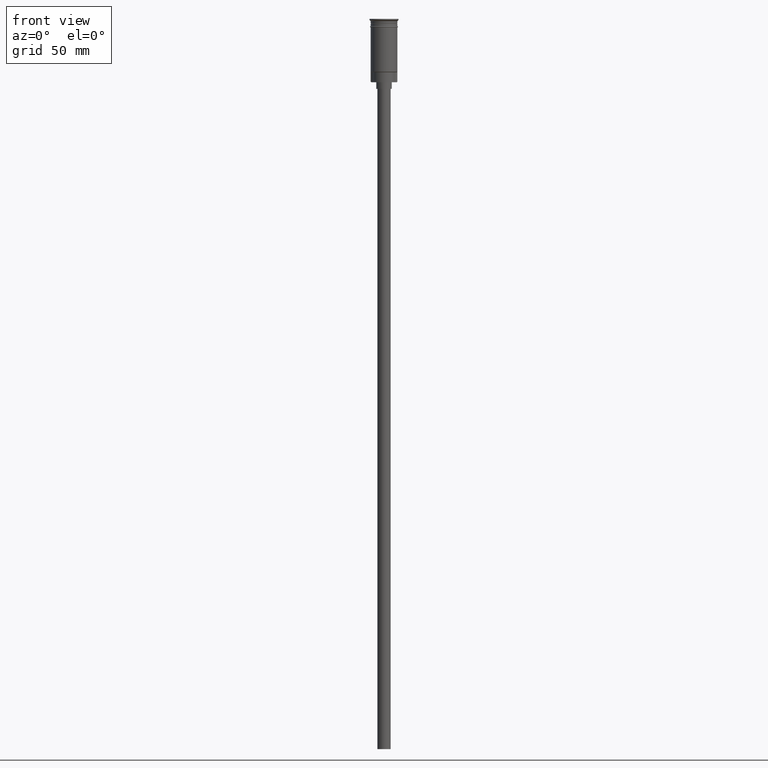
[diagram: clean part render]
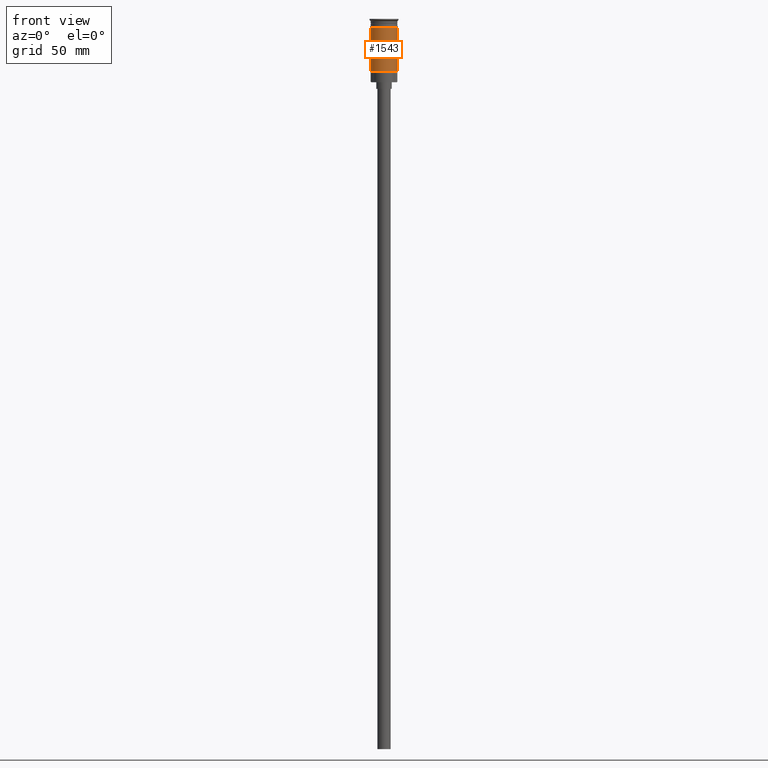
[diagram: same view with one face highlighted and labeled with its STEP entity id]
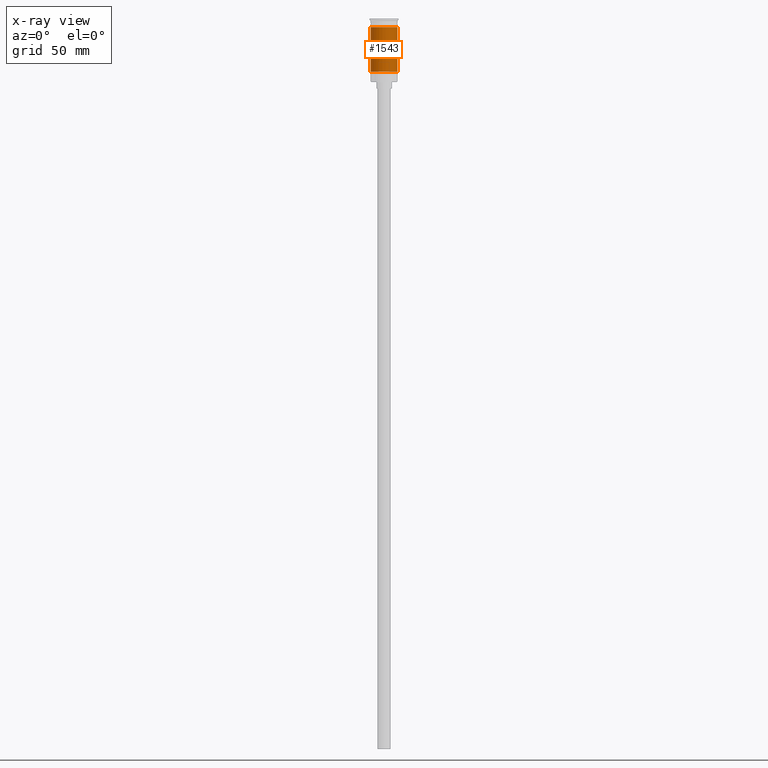
[diagram: x-ray of the same camera — body ghosted, the highlighted face saturated]
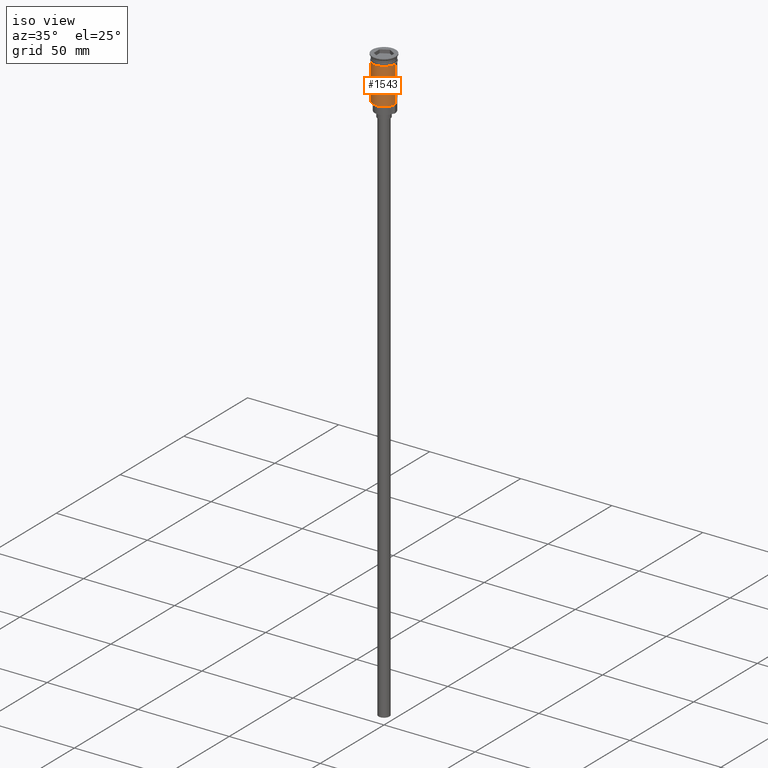
[diagram: same view with one face highlighted and labeled with its STEP entity id]
A machine part, front view. The second image highlights one B-rep face of the part: STEP entity #1543.
The next image is the same camera in x-ray: the body ghosted, the highlighted face saturated — about 0% of this face is hidden behind the body in this view.
A second angle (iso view) of the same face is appended — the face is thin or edge-on in the first view.
In plain terms, the highlighted cylindrical surface (edge-blend (fillet) strip) has radius 6 mm, axis along (-0, -0, 1).
Its self-contained STEP definition (entity closure, byte-faithful):
#116 = EDGE_CURVE ( 'NONE', #1600, #1278, #587, .T. ) ;
#130 = LINE ( 'NONE', #480, #1472 ) ;
#155 = EDGE_LOOP ( 'NONE', ( #815, #1570, #1056, #1085 ) ) ;
#169 = CARTESIAN_POINT ( 'NONE',  ( 5.999999999999997335, 0.000000000000000000, 0.000000000000000000 ) ) ;
#183 = CARTESIAN_POINT ( 'NONE',  ( 0.000000000000000000, 0.000000000000000000, 0.000000000000000000 ) ) ;
#232 = EDGE_CURVE ( 'NONE', #1200, #315, #244, .T. ) ;
#244 = CIRCLE ( 'NONE', #1255, 5.999999999999997335 ) ;
#312 = EDGE_CURVE ( 'NONE', #315, #1278, #1282, .T. ) ;
#315 = VERTEX_POINT ( 'NONE', #1242 ) ;
#322 = AXIS2_PLACEMENT_3D ( 'NONE', #1096, #725, #1105 ) ;
#415 = CARTESIAN_POINT ( 'NONE',  ( -6.000000000000000000, 7.347880794884119736E-16, -3.799999999999998490 ) ) ;
#480 = CARTESIAN_POINT ( 'NONE',  ( -5.999999999999997335, 7.347880794884116778E-16, 0.000000000000000000 ) ) ;
#482 = CARTESIAN_POINT ( 'NONE',  ( 0.000000000000000000, 0.000000000000000000, -23.79999999999995453 ) ) ;
#554 = AXIS2_PLACEMENT_3D ( 'NONE', #183, #1175, #808 ) ;
#587 = CIRCLE ( 'NONE', #322, 6.000000000000000000 ) ;
#654 = FACE_OUTER_BOUND ( 'NONE', #155, .T. ) ;
#725 = DIRECTION ( 'NONE',  ( -0.000000000000000000, -0.000000000000000000, 1.000000000000000000 ) ) ;
#729 = CARTESIAN_POINT ( 'NONE',  ( 6.000000000000000000, 0.000000000000000000, -3.799999999999998490 ) ) ;
#808 = DIRECTION ( 'NONE',  ( 1.000000000000000000, 0.000000000000000000, 0.000000000000000000 ) ) ;
#815 = ORIENTED_EDGE ( 'NONE', *, *, #1040, .F. ) ;
#852 = DIRECTION ( 'NONE',  ( -0.000000000000000000, -0.000000000000000000, 1.000000000000000000 ) ) ;
#921 = DIRECTION ( 'NONE',  ( -0.000000000000000000, -0.000000000000000000, 1.000000000000000000 ) ) ;
#928 = CYLINDRICAL_SURFACE ( 'NONE', #554, 5.999999999999997335 ) ;
#930 = VECTOR ( 'NONE', #921, 1000.000000000000000 ) ;
#976 = DIRECTION ( 'NONE',  ( -0.000000000000000000, -0.000000000000000000, 1.000000000000000000 ) ) ;
#994 = CARTESIAN_POINT ( 'NONE',  ( -5.999999999999994671, 0.000000000000000000, -23.79999999999995453 ) ) ;
#998 = DIRECTION ( 'NONE',  ( -1.000000000000000000, 0.000000000000000000, 0.000000000000000000 ) ) ;
#1040 = EDGE_CURVE ( 'NONE', #1200, #1600, #130, .T. ) ;
#1056 = ORIENTED_EDGE ( 'NONE', *, *, #312, .T. ) ;
#1085 = ORIENTED_EDGE ( 'NONE', *, *, #116, .F. ) ;
#1096 = CARTESIAN_POINT ( 'NONE',  ( 0.000000000000000000, 0.000000000000000000, -3.799999999999998490 ) ) ;
#1105 = DIRECTION ( 'NONE',  ( 1.000000000000000000, 0.000000000000000000, 0.000000000000000000 ) ) ;
#1175 = DIRECTION ( 'NONE',  ( -0.000000000000000000, -0.000000000000000000, 1.000000000000000000 ) ) ;
#1200 = VERTEX_POINT ( 'NONE', #994 ) ;
#1242 = CARTESIAN_POINT ( 'NONE',  ( 5.999999999999997335, 7.347880794884115792E-16, -23.79999999999995453 ) ) ;
#1255 = AXIS2_PLACEMENT_3D ( 'NONE', #482, #976, #998 ) ;
#1278 = VERTEX_POINT ( 'NONE', #729 ) ;
#1282 = LINE ( 'NONE', #169, #930 ) ;
#1472 = VECTOR ( 'NONE', #852, 1000.000000000000000 ) ;
#1543 = ADVANCED_FACE ( 'NONE', ( #654 ), #928, .T. ) ;
#1570 = ORIENTED_EDGE ( 'NONE', *, *, #232, .T. ) ;
#1600 = VERTEX_POINT ( 'NONE', #415 ) ;